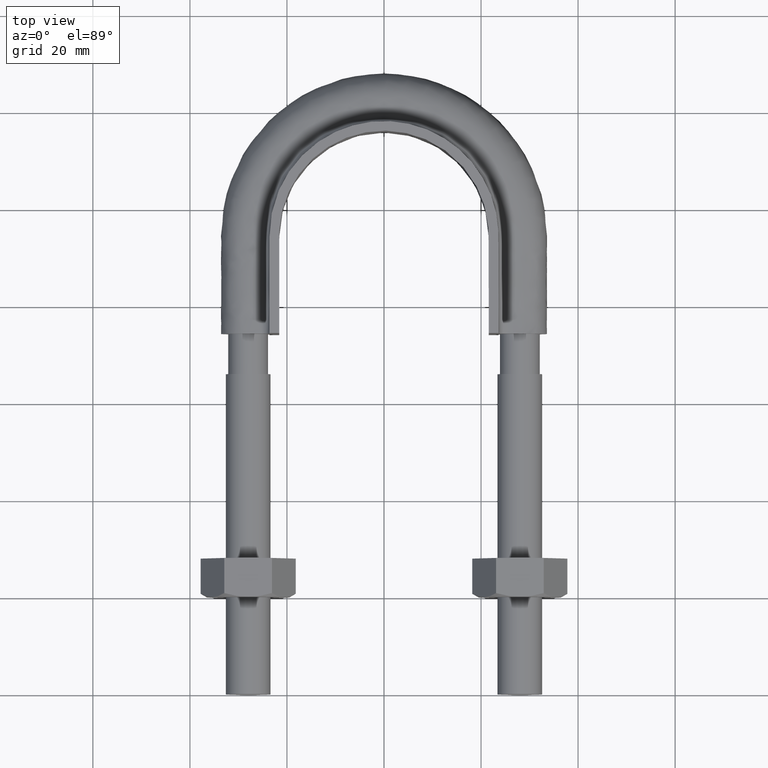
[diagram: clean part render]
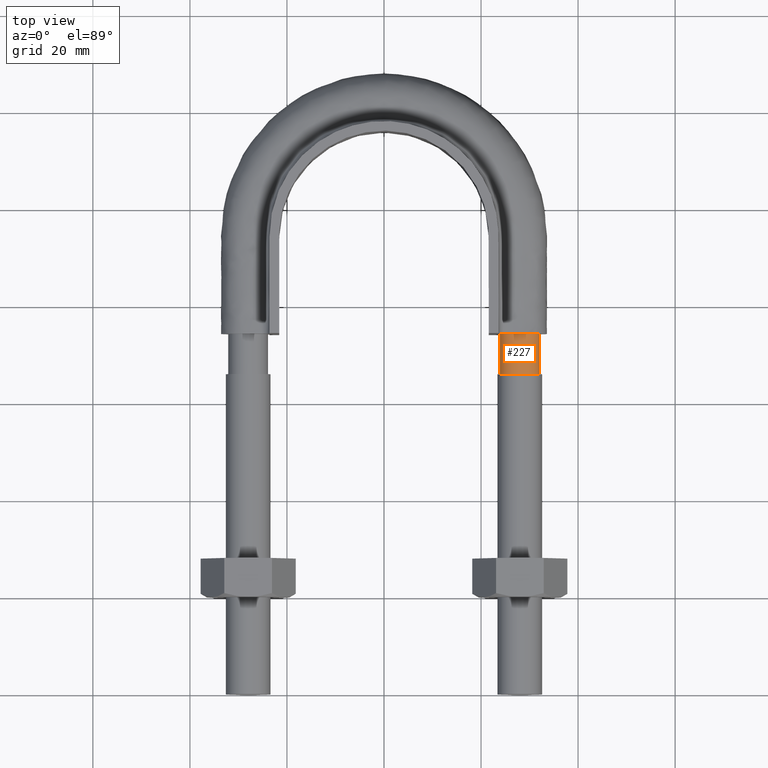
[diagram: same view with one face highlighted and labeled with its STEP entity id]
A machine part, top view. The second image highlights one B-rep face of the part: STEP entity #227.
In plain terms, the highlighted cylindrical surface (bore or boss wall) has radius 4.1 mm, axis along (0, 1, 0).
Its self-contained STEP definition (entity closure, byte-faithful):
#227 = ADVANCED_FACE( '', ( #316, #317 ), #318, .T. );
#316 = FACE_OUTER_BOUND( '', #1164, .T. );
#317 = FACE_OUTER_BOUND( '', #1165, .T. );
#318 = CYLINDRICAL_SURFACE( '', #1166, 4.10000000000000 );
#1164 = EDGE_LOOP( '', ( #1534, #1535, #1536, #1537, #1538, #1539, #1540 ) );
#1165 = EDGE_LOOP( '', ( #1541 ) );
#1166 = AXIS2_PLACEMENT_3D( '', #1542, #1543, #1544 );
#1534 = ORIENTED_EDGE( '', *, *, #2025, .T. );
#1535 = ORIENTED_EDGE( '', *, *, #2026, .T. );
#1536 = ORIENTED_EDGE( '', *, *, #2027, .T. );
#1537 = ORIENTED_EDGE( '', *, *, #2028, .T. );
#1538 = ORIENTED_EDGE( '', *, *, #2029, .T. );
#1539 = ORIENTED_EDGE( '', *, *, #2030, .T. );
#1540 = ORIENTED_EDGE( '', *, *, #2031, .T. );
#1541 = ORIENTED_EDGE( '', *, *, #2032, .T. );
#1542 = CARTESIAN_POINT( '', ( 28.0000000000000, 74.3000000000000, 2.02060048380692E-015 ) );
#1543 = DIRECTION( '', ( 2.44921270764475E-016, 1.00000000000000, 6.12303176911189E-017 ) );
#1544 = DIRECTION( '', ( 1.00000000000000, -2.44921270764475E-016, -7.49830360911069E-033 ) );
#2025 = EDGE_CURVE( '', #2195, #2196, #2197, .T. );
#2026 = EDGE_CURVE( '', #2196, #2198, #2199, .T. );
#2027 = EDGE_CURVE( '', #2198, #2200, #2201, .T. );
#2028 = EDGE_CURVE( '', #2200, #2202, #2203, .T. );
#2029 = EDGE_CURVE( '', #2202, #2204, #2205, .T. );
#2030 = EDGE_CURVE( '', #2204, #2206, #2207, .T. );
#2031 = EDGE_CURVE( '', #2206, #2195, #2208, .T. );
#2032 = EDGE_CURVE( '', #2209, #2209, #2210, .F. );
#2195 = VERTEX_POINT( '', #2646 );
#2196 = VERTEX_POINT( '', #2647 );
#2197 = CIRCLE( '', #2648, 4.10000000000000 );
#2198 = VERTEX_POINT( '', #2649 );
#2199 = CIRCLE( '', #2650, 4.10000000000000 );
#2200 = VERTEX_POINT( '', #2651 );
#2201 = CIRCLE( '', #2652, 4.10000000000000 );
#2202 = VERTEX_POINT( '', #2653 );
#2203 = CIRCLE( '', #2654, 4.10000000000000 );
#2204 = VERTEX_POINT( '', #2655 );
#2205 = CIRCLE( '', #2656, 4.10000000000000 );
#2206 = VERTEX_POINT( '', #2657 );
#2207 = CIRCLE( '', #2658, 4.10000000000000 );
#2208 = CIRCLE( '', #2659, 4.10000000000000 );
#2209 = VERTEX_POINT( '', #2660 );
#2210 = CIRCLE( '', #2661, 4.10000000000000 );
#2646 = CARTESIAN_POINT( '', ( 31.6939723583998, 74.3000000000000, 1.77892333038222 ) );
#2647 = CARTESIAN_POINT( '', ( 28.9123358292209, 74.3000000000000, 3.99720443994547 ) );
#2648 = AXIS2_PLACEMENT_3D( '', #3100, #3101, #3102 );
#2649 = CARTESIAN_POINT( '', ( 25.4436918123792, 74.3000000000000, 3.20550907811889 ) );
#2650 = AXIS2_PLACEMENT_3D( '', #3103, #3104, #3105 );
#2651 = CARTESIAN_POINT( '', ( 23.9000000000000, 74.3000000000000, -2.72765919113833E-014 ) );
#2652 = AXIS2_PLACEMENT_3D( '', #3106, #3107, #3108 );
#2653 = CARTESIAN_POINT( '', ( 25.4436918123817, 74.3000000000000, -3.20550907812087 ) );
#2654 = AXIS2_PLACEMENT_3D( '', #3109, #3110, #3111 );
#2655 = CARTESIAN_POINT( '', ( 28.9123358292214, 74.3000000000000, -3.99720443994536 ) );
#2656 = AXIS2_PLACEMENT_3D( '', #3112, #3113, #3114 );
#2657 = CARTESIAN_POINT( '', ( 31.6939723583999, 74.3000000000000, -1.77892333038213 ) );
#2658 = AXIS2_PLACEMENT_3D( '', #3115, #3116, #3117 );
#2659 = AXIS2_PLACEMENT_3D( '', #3118, #3119, #3120 );
#2660 = CARTESIAN_POINT( '', ( 32.1000000000000, 66.0000000000000, 1.51238884697064E-015 ) );
#2661 = AXIS2_PLACEMENT_3D( '', #3121, #3122, #3123 );
#3100 = CARTESIAN_POINT( '', ( 28.0000000000000, 74.3000000000000, 2.02060048380692E-015 ) );
#3101 = DIRECTION( '', ( -2.44921270764475E-016, -1.00000000000000, -6.12303176911189E-017 ) );
#3102 = DIRECTION( '', ( 1.00000000000000, -2.44921270764475E-016, -7.49830360911069E-033 ) );
#3103 = CARTESIAN_POINT( '', ( 28.0000000000000, 74.3000000000000, 2.02060048380692E-015 ) );
#3104 = DIRECTION( '', ( -2.44921270764475E-016, -1.00000000000000, -6.12303176911189E-017 ) );
#3105 = DIRECTION( '', ( 1.00000000000000, -2.44921270764475E-016, -7.49830360911069E-033 ) );
#3106 = CARTESIAN_POINT( '', ( 28.0000000000000, 74.3000000000000, 2.02060048380692E-015 ) );
#3107 = DIRECTION( '', ( -2.44921270764475E-016, -1.00000000000000, -6.12303176911189E-017 ) );
#3108 = DIRECTION( '', ( 1.00000000000000, -2.44921270764475E-016, -7.49830360911069E-033 ) );
#3109 = CARTESIAN_POINT( '', ( 28.0000000000000, 74.3000000000000, 2.02060048380692E-015 ) );
#3110 = DIRECTION( '', ( -2.44921270764475E-016, -1.00000000000000, -6.12303176911189E-017 ) );
#3111 = DIRECTION( '', ( 1.00000000000000, -2.44921270764475E-016, -7.49830360911069E-033 ) );
#3112 = CARTESIAN_POINT( '', ( 28.0000000000000, 74.3000000000000, 2.02060048380692E-015 ) );
#3113 = DIRECTION( '', ( -2.44921270764475E-016, -1.00000000000000, -6.12303176911189E-017 ) );
#3114 = DIRECTION( '', ( 1.00000000000000, -2.44921270764475E-016, -7.49830360911069E-033 ) );
#3115 = CARTESIAN_POINT( '', ( 28.0000000000000, 74.3000000000000, 2.02060048380692E-015 ) );
#3116 = DIRECTION( '', ( -2.44921270764475E-016, -1.00000000000000, -6.12303176911189E-017 ) );
#3117 = DIRECTION( '', ( 1.00000000000000, -2.44921270764475E-016, -7.49830360911069E-033 ) );
#3118 = CARTESIAN_POINT( '', ( 28.0000000000000, 74.3000000000000, 2.02060048380692E-015 ) );
#3119 = DIRECTION( '', ( -2.44921270764475E-016, -1.00000000000000, -6.12303176911189E-017 ) );
#3120 = DIRECTION( '', ( 1.00000000000000, -2.44921270764475E-016, -7.49830360911069E-033 ) );
#3121 = CARTESIAN_POINT( '', ( 28.0000000000000, 66.0000000000000, 1.51238884697064E-015 ) );
#3122 = DIRECTION( '', ( -2.44921270764475E-016, -1.00000000000000, -6.12303176911188E-017 ) );
#3123 = DIRECTION( '', ( 1.00000000000000, -2.44921270764475E-016, 0.000000000000000 ) );